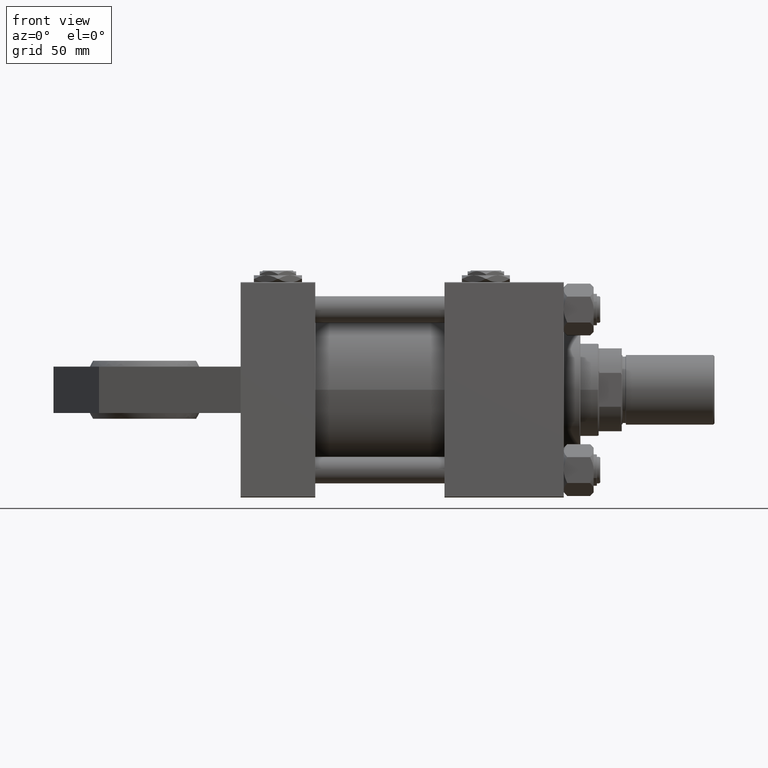
[diagram: clean part render]
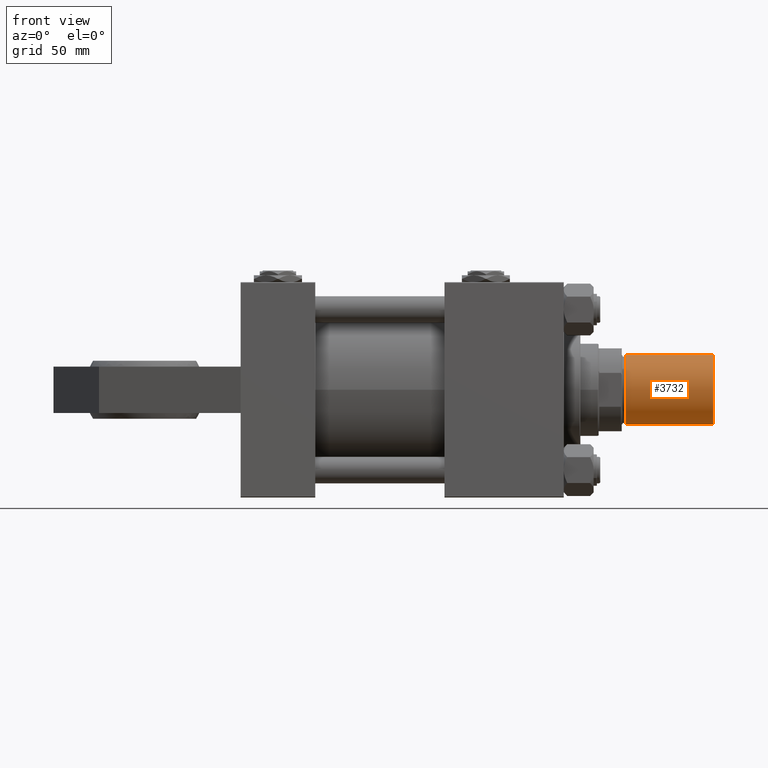
[diagram: same view with one face highlighted and labeled with its STEP entity id]
A machine part, front view. The second image highlights one B-rep face of the part: STEP entity #3732.
In plain terms, the highlighted cylindrical surface (edge-blend (fillet) strip) has radius 21 mm, axis along (1, -0, -0).
Its self-contained STEP definition (entity closure, byte-faithful):
#1524 = VERTEX_POINT ( 'NONE', #43598 ) ;
#2275 = CARTESIAN_POINT ( 'NONE',  ( -21.00000000000000000, 0.000000000000000000, 0.7999999999999882760 ) ) ;
#3732 = ADVANCED_FACE ( 'NONE', ( #26300 ), #47260, .T. ) ;
#4035 = DIRECTION ( 'NONE',  ( -0.000000000000000000, -0.000000000000000000, -1.000000000000000000 ) ) ;
#6121 = EDGE_LOOP ( 'NONE', ( #20106, #16203, #23722, #11368 ) ) ;
#9076 = CIRCLE ( 'NONE', #25394, 21.00000000000000000 ) ;
#9987 = DIRECTION ( 'NONE',  ( 1.000000000000000000, 0.000000000000000000, 0.000000000000000000 ) ) ;
#11193 = VERTEX_POINT ( 'NONE', #16040 ) ;
#11368 = ORIENTED_EDGE ( 'NONE', *, *, #37196, .T. ) ;
#13887 = CARTESIAN_POINT ( 'NONE',  ( 21.00000000000000000, 2.571758278209441661E-15, 0.7999999999999882760 ) ) ;
#14918 = EDGE_CURVE ( 'NONE', #11193, #16652, #40152, .T. ) ;
#14944 = VECTOR ( 'NONE', #15143, 1000.000000000000000 ) ;
#15143 = DIRECTION ( 'NONE',  ( -0.000000000000000000, -0.000000000000000000, -1.000000000000000000 ) ) ;
#15930 = CARTESIAN_POINT ( 'NONE',  ( 21.00000000000000000, 2.571758278209441661E-15, 53.50000000000000000 ) ) ;
#16040 = CARTESIAN_POINT ( 'NONE',  ( 21.00000000000000000, 2.571758278209441661E-15, 53.50000000000000000 ) ) ;
#16203 = ORIENTED_EDGE ( 'NONE', *, *, #50244, .F. ) ;
#16652 = VERTEX_POINT ( 'NONE', #13887 ) ;
#17685 = DIRECTION ( 'NONE',  ( -0.000000000000000000, -0.000000000000000000, -1.000000000000000000 ) ) ;
#18490 = CARTESIAN_POINT ( 'NONE',  ( 0.000000000000000000, 0.000000000000000000, 53.50000000000000000 ) ) ;
#19155 = AXIS2_PLACEMENT_3D ( 'NONE', #18490, #17685, #22533 ) ;
#20106 = ORIENTED_EDGE ( 'NONE', *, *, #14918, .F. ) ;
#20565 = CARTESIAN_POINT ( 'NONE',  ( 0.000000000000000000, 0.000000000000000000, 0.7999999999999882760 ) ) ;
#22533 = DIRECTION ( 'NONE',  ( -1.000000000000000000, 0.000000000000000000, 0.000000000000000000 ) ) ;
#23722 = ORIENTED_EDGE ( 'NONE', *, *, #26024, .T. ) ;
#25394 = AXIS2_PLACEMENT_3D ( 'NONE', #20565, #35434, #35704 ) ;
#25726 = CIRCLE ( 'NONE', #49782, 21.00000000000000000 ) ;
#26024 = EDGE_CURVE ( 'NONE', #1524, #36190, #33357, .T. ) ;
#26300 = FACE_OUTER_BOUND ( 'NONE', #6121, .T. ) ;
#29824 = VECTOR ( 'NONE', #4035, 1000.000000000000000 ) ;
#33206 = DIRECTION ( 'NONE',  ( 0.000000000000000000, 0.000000000000000000, 1.000000000000000000 ) ) ;
#33357 = LINE ( 'NONE', #36331, #29824 ) ;
#35434 = DIRECTION ( 'NONE',  ( -0.000000000000000000, -0.000000000000000000, 1.000000000000000000 ) ) ;
#35704 = DIRECTION ( 'NONE',  ( 1.000000000000000000, 0.000000000000000000, 0.000000000000000000 ) ) ;
#36190 = VERTEX_POINT ( 'NONE', #2275 ) ;
#36331 = CARTESIAN_POINT ( 'NONE',  ( -21.00000000000000000, 0.000000000000000000, 53.50000000000000000 ) ) ;
#37196 = EDGE_CURVE ( 'NONE', #36190, #16652, #9076, .T. ) ;
#38488 = CARTESIAN_POINT ( 'NONE',  ( 0.000000000000000000, 0.000000000000000000, 53.50000000000000000 ) ) ;
#40152 = LINE ( 'NONE', #15930, #14944 ) ;
#43598 = CARTESIAN_POINT ( 'NONE',  ( -21.00000000000000000, 0.000000000000000000, 53.50000000000000000 ) ) ;
#47260 = CYLINDRICAL_SURFACE ( 'NONE', #19155, 21.00000000000000000 ) ;
#49782 = AXIS2_PLACEMENT_3D ( 'NONE', #38488, #33206, #9987 ) ;
#50244 = EDGE_CURVE ( 'NONE', #1524, #11193, #25726, .T. ) ;